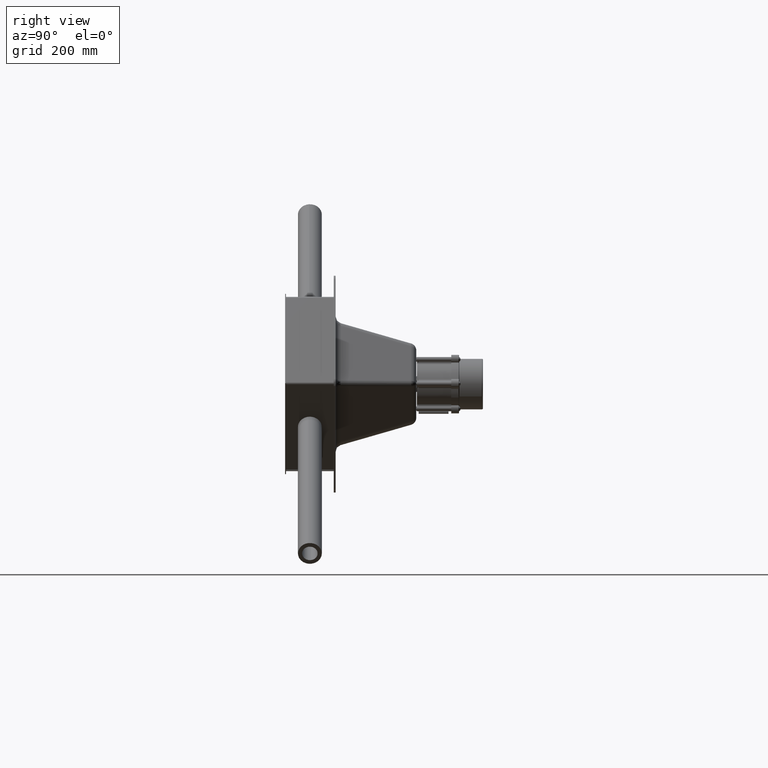
[diagram: clean part render]
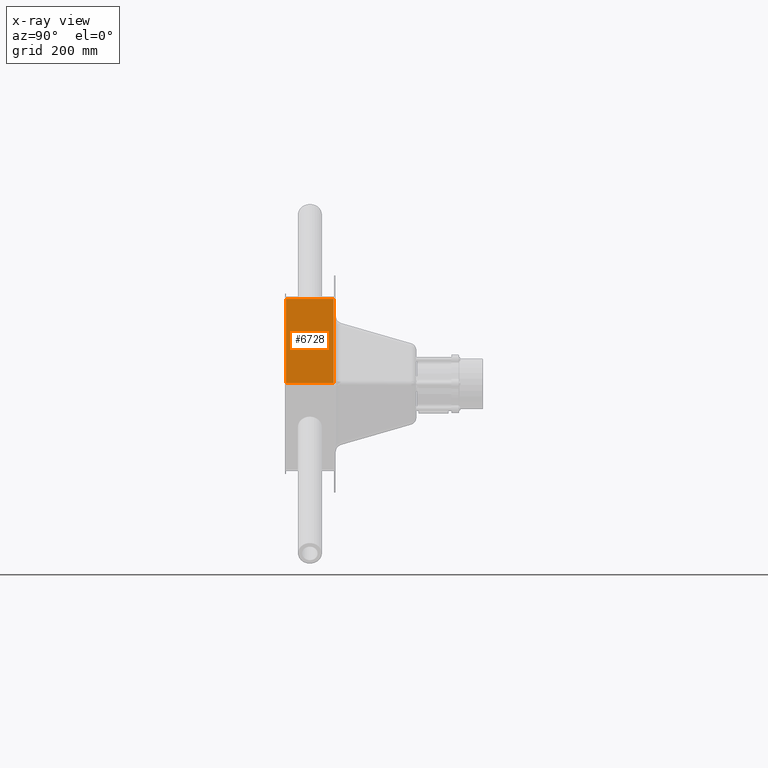
[diagram: x-ray — body ghosted, one internal face saturated and labeled with its STEP entity id]
A machine part, right view, then the same camera in x-ray: the body is ghosted and one INTERNAL B-rep face — a face not visible from any outside direction — is saturated and labeled: STEP entity #6728.
In plain terms, the highlighted planar face has unit normal (-0.8632, -0, -0.5049).
Its self-contained STEP definition (entity closure, byte-faithful):
#3781 = VERTEX_POINT ( 'NONE', #15248 ) ;
#4092 = LINE ( 'NONE', #7235, #25560 ) ;
#4782 = CARTESIAN_POINT ( 'NONE',  ( 107.9096489655194944, 0.0000000000000000000, 184.3214509771553935 ) ) ;
#5287 = FACE_OUTER_BOUND ( 'NONE', #17924, .T. ) ;
#5909 = DIRECTION ( 'NONE',  ( -0.4999999999999979461, -1.261617073437677999E-16, 0.8660254037844397068 ) ) ;
#6728 = ADVANCED_FACE ( 'NONE', ( #5287 ), #33195, .T. ) ;
#7235 = CARTESIAN_POINT ( 'NONE',  ( 214.1150502004594500, 0.0000000000000000000, 0.3683000000000158369 ) ) ;
#7374 = DIRECTION ( 'NONE',  ( 0.4999999999999979461, 0.0000000000000000000, -0.8660254037844397068 ) ) ;
#7557 = CARTESIAN_POINT ( 'NONE',  ( 132.5734931178203624, 40.00000000000001421, 141.6024197954095030 ) ) ;
#7733 = VERTEX_POINT ( 'NONE', #7557 ) ;
#7778 = VERTEX_POINT ( 'NONE', #10590 ) ;
#10590 = CARTESIAN_POINT ( 'NONE',  ( 132.5734931178203908, -40.00000000000002132, 141.6024197954095030 ) ) ;
#10927 = VECTOR ( 'NONE', #20430, 1000.000000000000114 ) ;
#11465 = LINE ( 'NONE', #15223, #25242 ) ;
#11754 = LINE ( 'NONE', #12621, #10927 ) ;
#12621 = CARTESIAN_POINT ( 'NONE',  ( 297.3608550136771669, -39.99999999999994316, -143.8176634534556229 ) ) ;
#15213 = EDGE_CURVE ( 'NONE', #3781, #31332, #4092, .T. ) ;
#15223 = CARTESIAN_POINT ( 'NONE',  ( 132.5734931178203908, 0.0000000000000000000, 141.6024197954095030 ) ) ;
#15248 = CARTESIAN_POINT ( 'NONE',  ( 214.1150502004594216, 39.99999999999997868, 0.3682999999999980734 ) ) ;
#15759 = EDGE_CURVE ( 'NONE', #7778, #31332, #11754, .T. ) ;
#16075 = VECTOR ( 'NONE', #5909, 1000.000000000000114 ) ;
#16121 = CARTESIAN_POINT ( 'NONE',  ( 214.1150502004594216, -39.99999999999999289, 0.3682999999999980734 ) ) ;
#16657 = ORIENTED_EDGE ( 'NONE', *, *, #25758, .T. ) ;
#17331 = AXIS2_PLACEMENT_3D ( 'NONE', #4782, #22869, #7374 ) ;
#17541 = ORIENTED_EDGE ( 'NONE', *, *, #15213, .F. ) ;
#17924 = EDGE_LOOP ( 'NONE', ( #17541, #16657, #29773, #28455 ) ) ;
#20430 = DIRECTION ( 'NONE',  ( 0.4999999999999979461, 1.261617073437677999E-16, -0.8660254037844397068 ) ) ;
#22869 = DIRECTION ( 'NONE',  ( 0.8660254037844398178, 0.0000000000000000000, 0.4999999999999980016 ) ) ;
#25242 = VECTOR ( 'NONE', #33351, 1000.000000000000000 ) ;
#25347 = DIRECTION ( 'NONE',  ( 0.0000000000000000000, -1.000000000000000000, 0.0000000000000000000 ) ) ;
#25560 = VECTOR ( 'NONE', #25347, 1000.000000000000000 ) ;
#25758 = EDGE_CURVE ( 'NONE', #3781, #7733, #29909, .T. ) ;
#28455 = ORIENTED_EDGE ( 'NONE', *, *, #15759, .T. ) ;
#28976 = EDGE_CURVE ( 'NONE', #7733, #7778, #11465, .T. ) ;
#29232 = CARTESIAN_POINT ( 'NONE',  ( 297.3608550136771669, 40.00000000000005684, -143.8176634534556229 ) ) ;
#29773 = ORIENTED_EDGE ( 'NONE', *, *, #28976, .T. ) ;
#29909 = LINE ( 'NONE', #29232, #16075 ) ;
#31332 = VERTEX_POINT ( 'NONE', #16121 ) ;
#33195 = PLANE ( 'NONE',  #17331 ) ;
#33351 = DIRECTION ( 'NONE',  ( 0.0000000000000000000, -1.000000000000000000, 0.0000000000000000000 ) ) ;